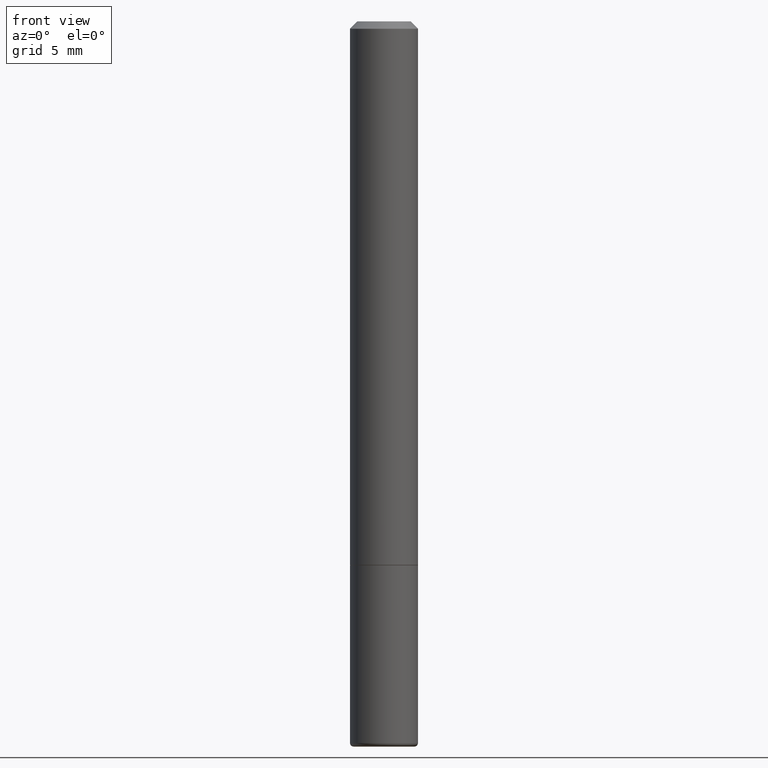
[diagram: clean part render]
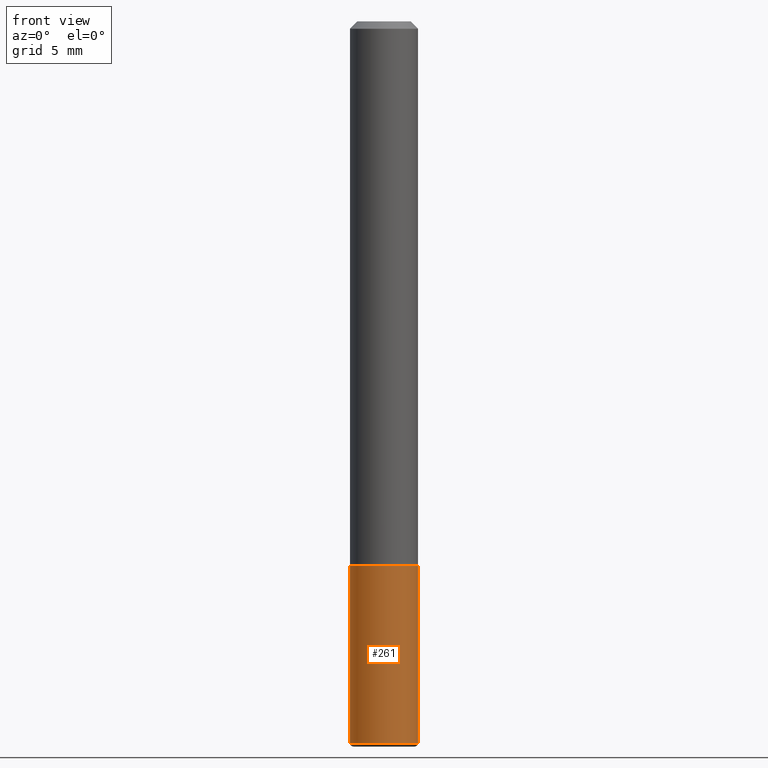
[diagram: same view with one face highlighted and labeled with its STEP entity id]
A machine part, front view. The second image highlights one B-rep face of the part: STEP entity #261.
In plain terms, the highlighted cylindrical surface (edge-blend (fillet) strip) has radius 2.3813 mm, axis along (-0, 0, 1).
Its self-contained STEP definition (entity closure, byte-faithful):
#3 = CARTESIAN_POINT ( 'NONE',  ( 0.000000000000000000, 0.000000000000000000, 0.000000000000000000 ) ) ;
#9 = CARTESIAN_POINT ( 'NONE',  ( 0.09375000000000002776, -6.546527510330876027E-16, 4.571415727308691207E-30 ) ) ;
#63 = VERTEX_POINT ( 'NONE', #101 ) ;
#90 = CIRCLE ( 'NONE', #272, 0.09375000000000001388 ) ;
#101 = CARTESIAN_POINT ( 'NONE',  ( 0.09374999999999998612, -7.602700615330948598E-15, -1.989999999999999991 ) ) ;
#121 = CYLINDRICAL_SURFACE ( 'NONE', #156, 0.09375000000000002776 ) ;
#123 = ORIENTED_EDGE ( 'NONE', *, *, #399, .T. ) ;
#126 = VECTOR ( 'NONE', #186, 39.37007874015748143 ) ;
#134 = CARTESIAN_POINT ( 'NONE',  ( 4.866482924308422209E-29, -6.948047864297860305E-15, -1.989999999999999991 ) ) ;
#147 = EDGE_CURVE ( 'NONE', #237, #63, #414, .T. ) ;
#151 = EDGE_CURVE ( 'NONE', #298, #352, #90, .T. ) ;
#152 = LINE ( 'NONE', #381, #126 ) ;
#156 = AXIS2_PLACEMENT_3D ( 'NONE', #3, #250, #187 ) ;
#184 = DIRECTION ( 'NONE',  ( -2.445468806185136597E-29, 3.491481338843145583E-15, 1.000000000000000000 ) ) ;
#186 = DIRECTION ( 'NONE',  ( -2.445468806185136877E-29, 3.491481338843145188E-15, 1.000000000000000000 ) ) ;
#187 = DIRECTION ( 'NONE',  ( 1.000000000000000000, -6.982962677686265922E-15, 4.876176775795935793E-29 ) ) ;
#192 = DIRECTION ( 'NONE',  ( 1.000000000000000000, -6.982962677686261189E-15, 0.000000000000000000 ) ) ;
#193 = CARTESIAN_POINT ( 'NONE',  ( -0.09375000000000001388, -5.426501121506194922E-15, -1.499999999999999778 ) ) ;
#200 = EDGE_LOOP ( 'NONE', ( #361, #417, #123, #357 ) ) ;
#214 = DIRECTION ( 'NONE',  ( -2.445468806185136597E-29, 3.491481338843145583E-15, 1.000000000000000000 ) ) ;
#235 = DIRECTION ( 'NONE',  ( -2.445468806185136877E-29, 3.491481338843145188E-15, 1.000000000000000000 ) ) ;
#237 = VERTEX_POINT ( 'NONE', #402 ) ;
#243 = AXIS2_PLACEMENT_3D ( 'NONE', #134, #214, #343 ) ;
#250 = DIRECTION ( 'NONE',  ( -2.445468806185136597E-29, 3.491481338843145583E-15, 1.000000000000000000 ) ) ;
#252 = CARTESIAN_POINT ( 'NONE',  ( 0.09375000000000001388, -5.891874759297804892E-15, -1.499999999999999778 ) ) ;
#253 = CARTESIAN_POINT ( 'NONE',  ( 3.668203209277704335E-29, -5.237222008264717388E-15, -1.499999999999999778 ) ) ;
#261 = ADVANCED_FACE ( 'NONE', ( #313 ), #121, .T. ) ;
#272 = AXIS2_PLACEMENT_3D ( 'NONE', #253, #184, #192 ) ;
#288 = VECTOR ( 'NONE', #235, 39.37007874015748143 ) ;
#298 = VERTEX_POINT ( 'NONE', #193 ) ;
#305 = EDGE_CURVE ( 'NONE', #237, #298, #152, .T. ) ;
#313 = FACE_OUTER_BOUND ( 'NONE', #200, .T. ) ;
#343 = DIRECTION ( 'NONE',  ( 1.000000000000000000, -6.982962677686270655E-15, 0.000000000000000000 ) ) ;
#352 = VERTEX_POINT ( 'NONE', #252 ) ;
#357 = ORIENTED_EDGE ( 'NONE', *, *, #151, .F. ) ;
#361 = ORIENTED_EDGE ( 'NONE', *, *, #305, .F. ) ;
#381 = CARTESIAN_POINT ( 'NONE',  ( -0.09375000000000002776, 6.661338147750941215E-16, -4.611501647113975397E-30 ) ) ;
#399 = EDGE_CURVE ( 'NONE', #63, #352, #406, .T. ) ;
#402 = CARTESIAN_POINT ( 'NONE',  ( -0.09374999999999998612, -6.281914049522767170E-15, -1.989999999999999991 ) ) ;
#406 = LINE ( 'NONE', #9, #288 ) ;
#414 = CIRCLE ( 'NONE', #243, 0.09375000000000002776 ) ;
#417 = ORIENTED_EDGE ( 'NONE', *, *, #147, .T. ) ;